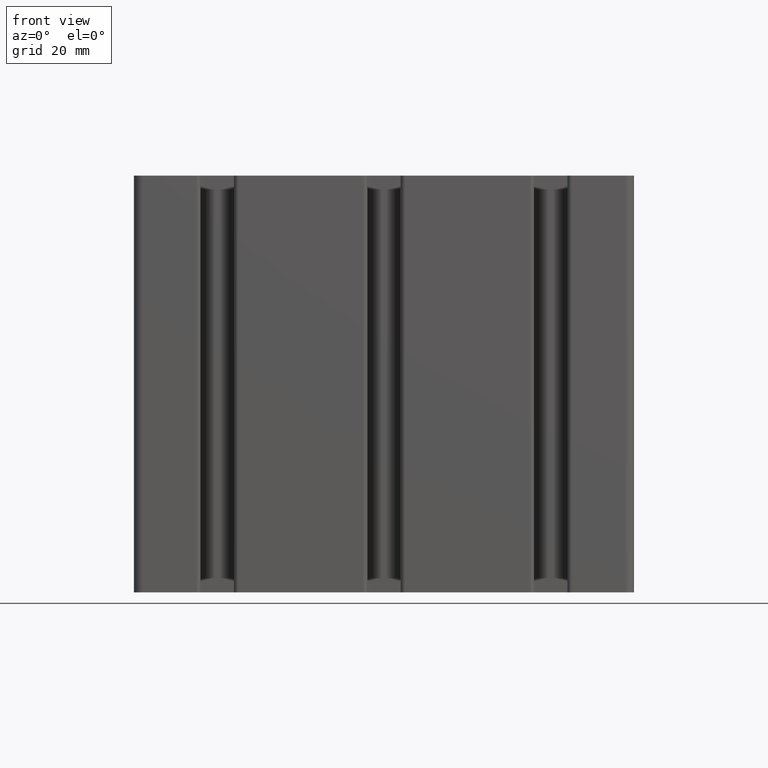
[diagram: clean part render]
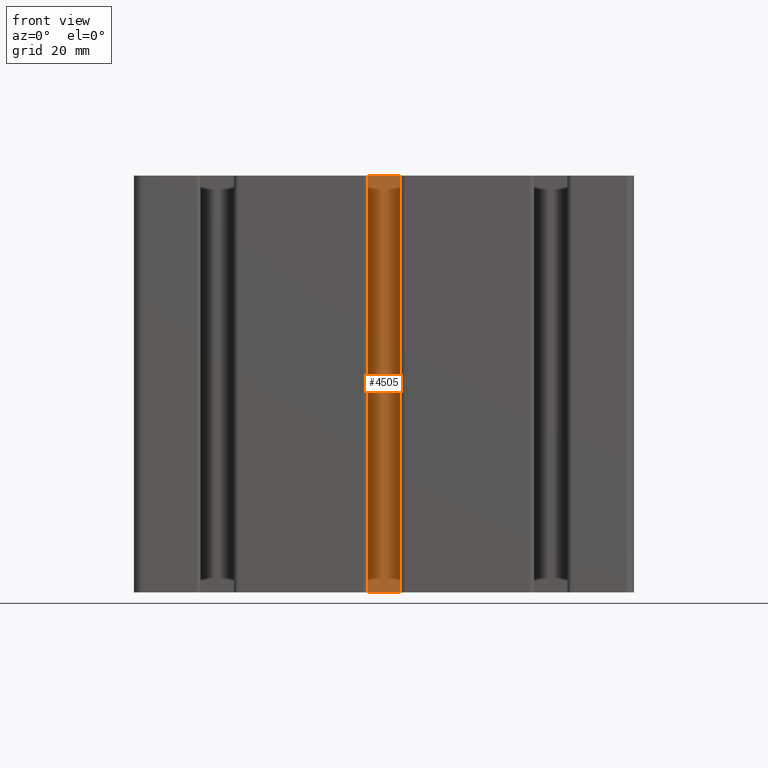
[diagram: same view with one face highlighted and labeled with its STEP entity id]
A machine part, front view. The second image highlights one B-rep face of the part: STEP entity #4505.
In plain terms, the highlighted planar face has unit normal (0, 1, 0).
Its self-contained STEP definition (entity closure, byte-faithful):
#87=PLANE('',#4859);
#259=FACE_OUTER_BOUND('',#494,.T.);
#494=EDGE_LOOP('',(#3341,#3342,#3343,#3344));
#845=LINE('',#7160,#1289);
#846=LINE('',#7163,#1290);
#847=LINE('',#7165,#1291);
#848=LINE('',#7166,#1292);
#1289=VECTOR('',#5773,100.);
#1290=VECTOR('',#5776,7.68629150101523);
#1291=VECTOR('',#5777,7.68629150101523);
#1292=VECTOR('',#5778,100.);
#1989=VERTEX_POINT('',#7156);
#1990=VERTEX_POINT('',#7158);
#1991=VERTEX_POINT('',#7162);
#1992=VERTEX_POINT('',#7164);
#2553=EDGE_CURVE('',#1990,#1989,#845,.T.);
#2554=EDGE_CURVE('',#1989,#1991,#846,.T.);
#2555=EDGE_CURVE('',#1992,#1990,#847,.T.);
#2556=EDGE_CURVE('',#1992,#1991,#848,.T.);
#3341=ORIENTED_EDGE('',*,*,#2554,.F.);
#3342=ORIENTED_EDGE('',*,*,#2553,.F.);
#3343=ORIENTED_EDGE('',*,*,#2555,.F.);
#3344=ORIENTED_EDGE('',*,*,#2556,.T.);
#4505=ADVANCED_FACE('',(#259),#87,.F.);
#4859=AXIS2_PLACEMENT_3D('',#7161,#5774,#5775);
#5773=DIRECTION('',(0.,0.,1.));
#5774=DIRECTION('center_axis',(0.,1.,0.));
#5775=DIRECTION('ref_axis',(-1.,0.,0.));
#5776=DIRECTION('',(1.,0.,0.));
#5777=DIRECTION('',(-1.,0.,0.));
#5778=DIRECTION('',(0.,0.,1.));
#7156=CARTESIAN_POINT('',(-3.84314575050769,-27.5,100.));
#7158=CARTESIAN_POINT('',(-3.84314575050769,-27.5,0.));
#7160=CARTESIAN_POINT('',(-3.84314575050769,-27.5,0.));
#7161=CARTESIAN_POINT('Origin',(3.84314575050755,-27.5,0.));
#7162=CARTESIAN_POINT('',(3.84314575050755,-27.5,100.));
#7163=CARTESIAN_POINT('',(1.92157287525377,-27.5,100.));
#7164=CARTESIAN_POINT('',(3.84314575050755,-27.5,0.));
#7165=CARTESIAN_POINT('',(1.92157287525377,-27.5,0.));
#7166=CARTESIAN_POINT('',(3.84314575050755,-27.5,0.));